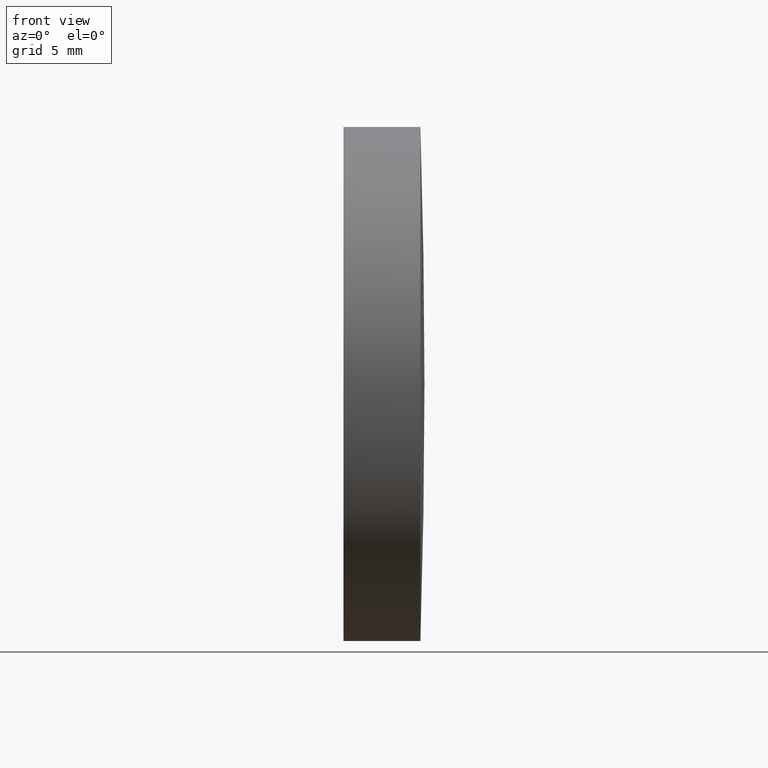
[diagram: clean part render]
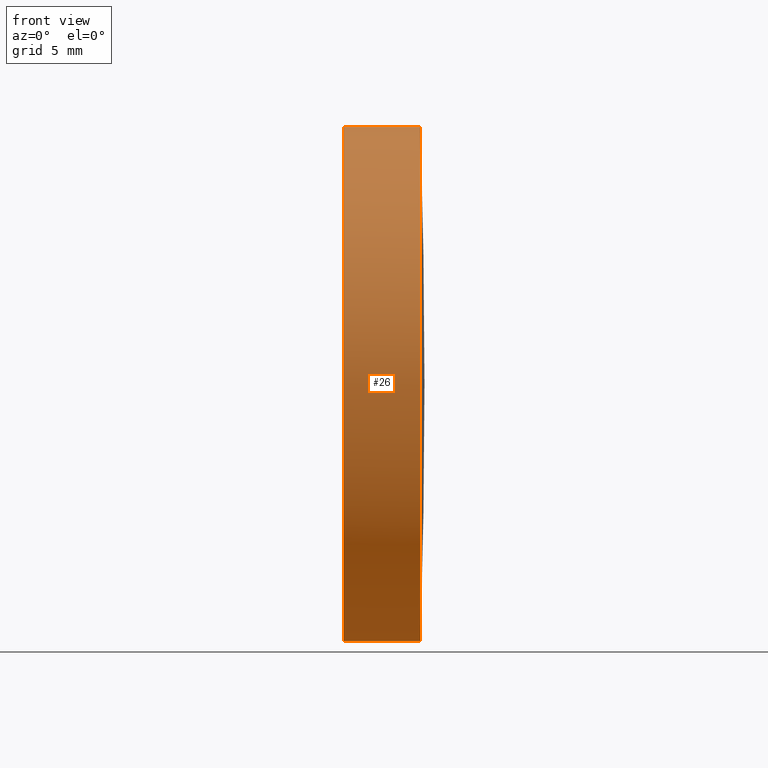
[diagram: same view with one face highlighted and labeled with its STEP entity id]
A machine part, front view. The second image highlights one B-rep face of the part: STEP entity #26.
In plain terms, the highlighted cylindrical surface (partial cylindrical patch) has radius 12.7 mm, axis along (-1, -0, -0).
Its self-contained STEP definition (entity closure, byte-faithful):
#3 = VECTOR ( 'NONE', #93, 1000.000000000000000 ) ;
#4 = CYLINDRICAL_SURFACE ( 'NONE', #7, 12.70000000000001700 ) ;
#7 = AXIS2_PLACEMENT_3D ( 'NONE', #161, #31, #90 ) ;
#11 = VECTOR ( 'NONE', #155, 1000.000000000000000 ) ;
#19 = VERTEX_POINT ( 'NONE', #74 ) ;
#26 = ADVANCED_FACE ( 'NONE', ( #86 ), #4, .T. ) ;
#28 = CARTESIAN_POINT ( 'NONE',  ( 487.7125078025071600, 125.1785277586624500, 12.70000000000001700 ) ) ;
#29 = CARTESIAN_POINT ( 'NONE',  ( 491.5125078025071200, 125.1785277586624500, 0.0000000000000000000 ) ) ;
#31 = DIRECTION ( 'NONE',  ( -1.000000000000000000, -0.0000000000000000000, -0.0000000000000000000 ) ) ;
#36 = EDGE_CURVE ( 'NONE', #100, #92, #186, .T. ) ;
#39 = ORIENTED_EDGE ( 'NONE', *, *, #136, .F. ) ;
#45 = DIRECTION ( 'NONE',  ( -1.000000000000000000, -0.0000000000000000000, -0.0000000000000000000 ) ) ;
#46 = LINE ( 'NONE', #144, #11 ) ;
#48 = CARTESIAN_POINT ( 'NONE',  ( 482.0826117513499900, 125.1785277586624500, -12.70000000000001700 ) ) ;
#50 = CARTESIAN_POINT ( 'NONE',  ( 491.5125078025071200, 125.1785277586624500, 0.0000000000000000000 ) ) ;
#56 = ORIENTED_EDGE ( 'NONE', *, *, #148, .T. ) ;
#60 = CARTESIAN_POINT ( 'NONE',  ( 487.7125078025071600, 125.1785277586624500, 0.0000000000000000000 ) ) ;
#69 = ORIENTED_EDGE ( 'NONE', *, *, #140, .T. ) ;
#74 = CARTESIAN_POINT ( 'NONE',  ( 491.5125078025071200, 125.1785277586624500, 12.70000000000001700 ) ) ;
#76 = DIRECTION ( 'NONE',  ( 0.0000000000000000000, 0.0000000000000000000, 1.000000000000000000 ) ) ;
#78 = EDGE_LOOP ( 'NONE', ( #133, #88, #69, #56, #39 ) ) ;
#83 = DIRECTION ( 'NONE',  ( 0.0000000000000000000, 0.0000000000000000000, 1.000000000000000000 ) ) ;
#86 = FACE_OUTER_BOUND ( 'NONE', #78, .T. ) ;
#88 = ORIENTED_EDGE ( 'NONE', *, *, #36, .T. ) ;
#89 = AXIS2_PLACEMENT_3D ( 'NONE', #29, #45, #125 ) ;
#90 = DIRECTION ( 'NONE',  ( 0.0000000000000000000, 0.0000000000000000000, 1.000000000000000000 ) ) ;
#92 = VERTEX_POINT ( 'NONE', #128 ) ;
#93 = DIRECTION ( 'NONE',  ( -1.000000000000000000, -0.0000000000000000000, -0.0000000000000000000 ) ) ;
#100 = VERTEX_POINT ( 'NONE', #179 ) ;
#107 = DIRECTION ( 'NONE',  ( -1.000000000000000000, -0.0000000000000000000, -0.0000000000000000000 ) ) ;
#111 = EDGE_CURVE ( 'NONE', #100, #146, #185, .T. ) ;
#118 = CARTESIAN_POINT ( 'NONE',  ( 487.7125078025071600, 125.1785277586624500, -12.70000000000001700 ) ) ;
#119 = AXIS2_PLACEMENT_3D ( 'NONE', #60, #107, #76 ) ;
#125 = DIRECTION ( 'NONE',  ( 0.0000000000000000000, 0.0000000000000000000, 1.000000000000000000 ) ) ;
#128 = CARTESIAN_POINT ( 'NONE',  ( 491.5125078025071200, 112.4785277586634000, 0.0000000000000000000 ) ) ;
#133 = ORIENTED_EDGE ( 'NONE', *, *, #111, .F. ) ;
#136 = EDGE_CURVE ( 'NONE', #146, #145, #173, .T. ) ;
#140 = EDGE_CURVE ( 'NONE', #92, #19, #153, .T. ) ;
#144 = CARTESIAN_POINT ( 'NONE',  ( 482.0826117513499900, 125.1785277586624500, 12.70000000000001700 ) ) ;
#145 = VERTEX_POINT ( 'NONE', #28 ) ;
#146 = VERTEX_POINT ( 'NONE', #118 ) ;
#147 = AXIS2_PLACEMENT_3D ( 'NONE', #50, #180, #83 ) ;
#148 = EDGE_CURVE ( 'NONE', #19, #145, #46, .T. ) ;
#153 = CIRCLE ( 'NONE', #147, 12.70000000000001700 ) ;
#155 = DIRECTION ( 'NONE',  ( -1.000000000000000000, -0.0000000000000000000, -0.0000000000000000000 ) ) ;
#161 = CARTESIAN_POINT ( 'NONE',  ( 482.0826117513499900, 125.1785277586624500, 0.0000000000000000000 ) ) ;
#173 = CIRCLE ( 'NONE', #119, 12.70000000000001700 ) ;
#179 = CARTESIAN_POINT ( 'NONE',  ( 491.5125078025071200, 125.1785277586624500, -12.70000000000001700 ) ) ;
#180 = DIRECTION ( 'NONE',  ( -1.000000000000000000, -0.0000000000000000000, -0.0000000000000000000 ) ) ;
#185 = LINE ( 'NONE', #48, #3 ) ;
#186 = CIRCLE ( 'NONE', #89, 12.70000000000001700 ) ;